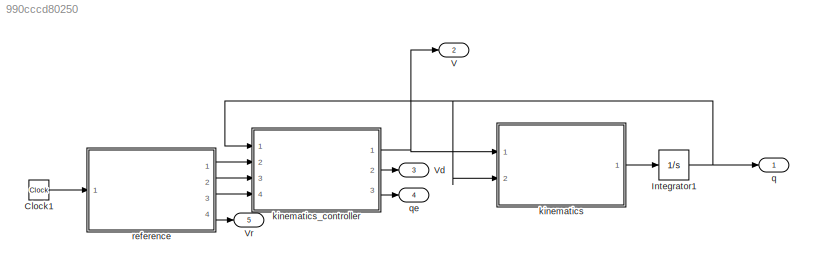
MODEL slx_990cccd80250
KIND model
CONFIG AbsTol = 1e-4
CONFIG EnableMultiTasking = off
CONFIG FixedStep = auto
CONFIG MaxStep = auto
CONFIG MinStep = auto
CONFIG RelTol = 1e-3
CONFIG SampleTimeConstraint = Unconstrained
CONFIG SolverName = VariableStepAuto
CONFIG StartTime = 0.0
CONFIG StopTime = 120
BLOCK [Clock] Clock1
BLOCK [Integrator] Integrator1
  InitialCondition = q0
  Ports = [1, 1]
BLOCK [Outport] V
  Port = 2
BLOCK [Outport] Vd
  Port = 3
BLOCK [Outport] Vr
  Port = 5
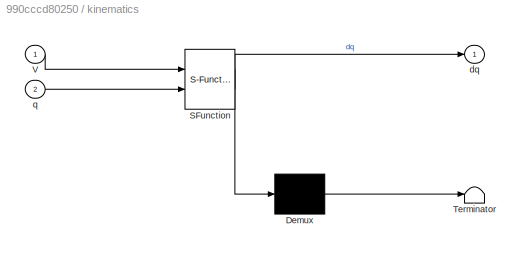
BLOCK [SubSystem] kinematics
  ErrorFcn = Stateflow.Translate.translate
  PermitHierarchicalResolution = ExplicitOnly
  Ports = [2, 1]
  RequestExecContextInheritance = off
  SFBlockType = MATLAB Function
  TreatAsAtomicUnit = on
BLOCK [Demux] kinematics/ Demux 
  Outputs = 1
  Ports = [1, 1]
BLOCK [S-Function] kinematics/ SFunction 
  EnableBusSupport = on
  FunctionName = sf_sfun
  PortCounts = [2 2]
  Ports = [2, 2]
  SFcnIsStateOwnerBlock = off
  SFunctionDeploymentMode = off
  Tag = Stateflow S-Function 4
BLOCK [Terminator] kinematics/ Terminator 
BLOCK [Inport] kinematics/V
BLOCK [Outport] kinematics/dq
BLOCK [Inport] kinematics/q
  Port = 2
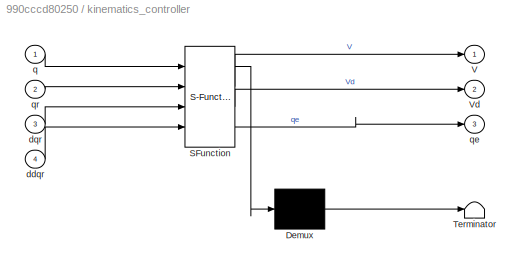
BLOCK [SubSystem] kinematics_controller
  ErrorFcn = Stateflow.Translate.translate
  PermitHierarchicalResolution = ExplicitOnly
  Ports = [4, 3]
  RequestExecContextInheritance = off
  SFBlockType = MATLAB Function
  TreatAsAtomicUnit = on
BLOCK [Demux] kinematics_controller/ Demux 
  Outputs = 1
  Ports = [1, 1]
BLOCK [S-Function] kinematics_controller/ SFunction 
  EnableBusSupport = on
  FunctionName = sf_sfun
  PortCounts = [4 4]
  Ports = [4, 4]
  SFcnIsStateOwnerBlock = off
  SFunctionDeploymentMode = off
  Tag = Stateflow S-Function 3
BLOCK [Terminator] kinematics_controller/ Terminator 
BLOCK [Outport] kinematics_controller/V
BLOCK [Outport] kinematics_controller/Vd
  Port = 2
BLOCK [Inport] kinematics_controller/ddqr
  Port = 4
BLOCK [Inport] kinematics_controller/dqr
  Port = 3
BLOCK [Inport] kinematics_controller/q
BLOCK [Outport] kinematics_controller/qe
  Port = 3
BLOCK [Inport] kinematics_controller/qr
  Port = 2
BLOCK [Outport] q
BLOCK [Outport] qe
  Port = 4
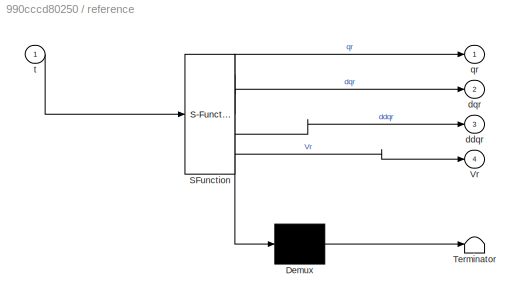
BLOCK [SubSystem] reference
  ErrorFcn = Stateflow.Translate.translate
  PermitHierarchicalResolution = ExplicitOnly
  Ports = [1, 4]
  RequestExecContextInheritance = off
  SFBlockType = MATLAB Function
  TreatAsAtomicUnit = on
BLOCK [Demux] reference/ Demux 
  Outputs = 1
  Ports = [1, 1]
BLOCK [S-Function] reference/ SFunction 
  EnableBusSupport = on
  FunctionName = sf_sfun
  PortCounts = [1 5]
  Ports = [1, 5]
  SFcnIsStateOwnerBlock = off
  SFunctionDeploymentMode = off
  Tag = Stateflow S-Function 1
BLOCK [Terminator] reference/ Terminator 
BLOCK [Outport] reference/Vr
  Port = 4
BLOCK [Outport] reference/ddqr
  Port = 3
BLOCK [Outport] reference/dqr
  Port = 2
BLOCK [Outport] reference/qr
BLOCK [Inport] reference/t
LINE Clock1:1 -> reference:1
NET Integrator1:1 -> kinematics:2, kinematics_controller:1, q:1
LINE kinematics:1 -> Integrator1:1
NET kinematics_controller:1 -> V:1, kinematics:1
LINE kinematics_controller:2 -> Vd:1
LINE kinematics_controller:3 -> qe:1
LINE reference:1 -> kinematics_controller:2
LINE reference:2 -> kinematics_controller:3
LINE reference:3 -> kinematics_controller:4
LINE reference:4 -> Vr:1
note: NET lines group one-source signal fan-out (src -> all destinations, sorted); 1:1 wires keep LINE
CHART reference states=1 transitions=1
  STATE_LABEL 'eML_blk_kernel()'
  STATE_LABEL "SCRIPT:\nfunction [qr,dqr,ddqr,Vr]= fcn(t)\nda1=0.08;da2=0.04;r=1.5;\nqr=[r*sin(da1*t);r*sin(da2*t)];\ndqr=[r*da1*cos(da1*t);r*da2*cos(da2*t)];\nddqr=[-r*da1^2*sin(da1*t);-r*da2^2*sin(da2*t)];\nther=atan2(dqr(2),dqr(1));\nvr=sqrt(dqr'*dqr);\nwr=-[sin(ther) -cos(ther)]*ddqr/vr;\nVr=[vr;wr];\n\n\n\n"
CHART kinematics_controller states=1 transitions=1
  STATE_LABEL 'eML_blk_kernel()'
  STATE_LABEL 'SCRIPT:\nfunction [V,Vd,qe]= fcn(q,qr,dqr,ddqr)\nthe=atan2(sin(q(3)),cos(q(3)));\n\n\nxr=qr(1);yr=qr(2);\ndxr=dqr(1);dyr=dqr(2);\nddxr=ddqr(1);ddyr=ddqr(2);\n\nk1=0.3;k2=0.3;\nvm=0.14;wm=0.24;\n\nal=atan2(dyr+k1*(yr-q(2)),dxr+k1*(xr-q(1)));    \nthee=atan2(sin(al-the),cos(al-the));\n\nvp=sqrt((dyr+k1*(yr-q(2)))^2+(dxr+k1*(xr-q(1)))^2);\nvd=vp*cos(thee*0.5)^2;\nv=min(vd,vm);\ndal=((ddyr+k1*dyr-k1*v*sin(the))*cos(al)...<+185ch>'
CHART kinematics states=1 transitions=1
  STATE_LABEL 'eML_blk_kernel()'
  STATE_LABEL 'SCRIPT:\nfunction dq = fcn(V,q)\ndq=[ cos(q(3))  0\n     sin(q(3))  0\n      0         1]*V;\n\n\n\n'
CHART  states=0 transitions=0
CHART  states=0 transitions=0
CHART  states=0 transitions=0
